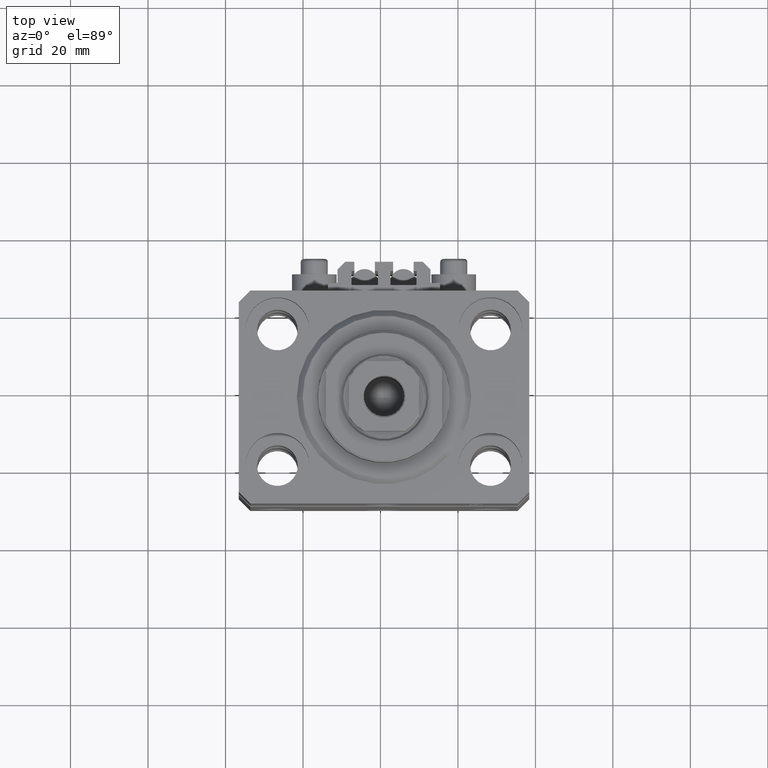
[diagram: clean part render]
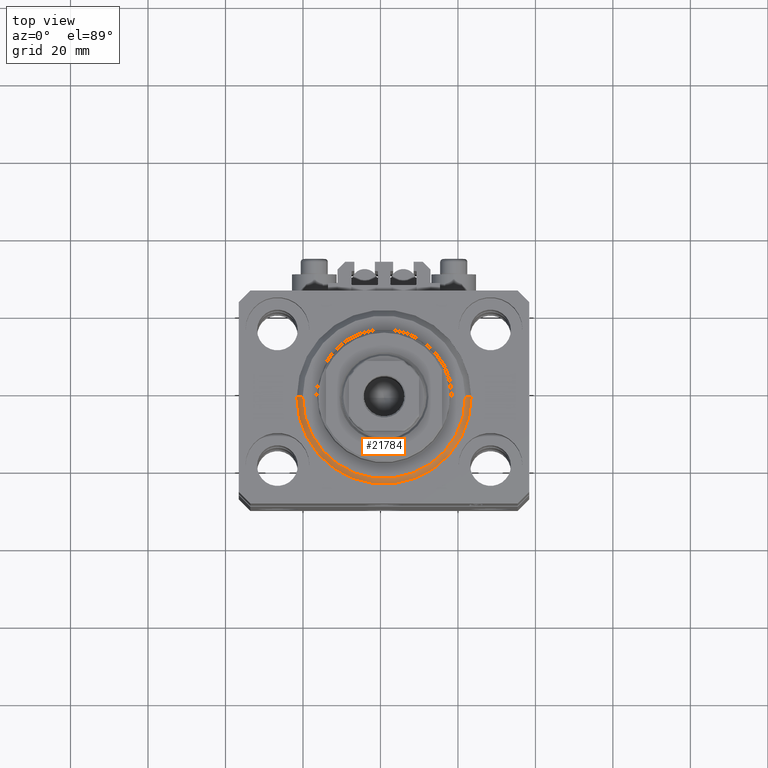
[diagram: same view with one face highlighted and labeled with its STEP entity id]
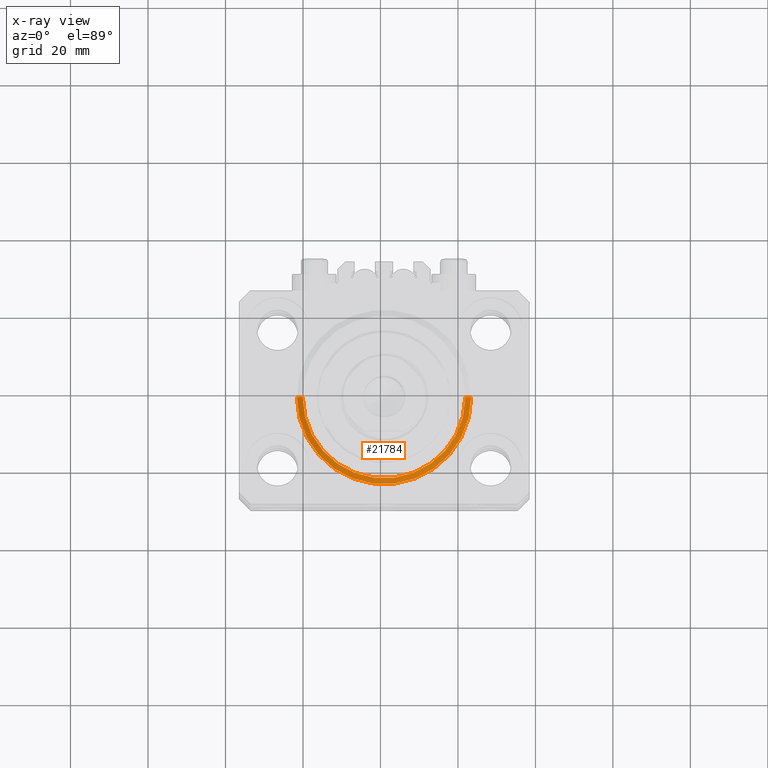
[diagram: x-ray of the same camera — body ghosted, the highlighted face saturated]
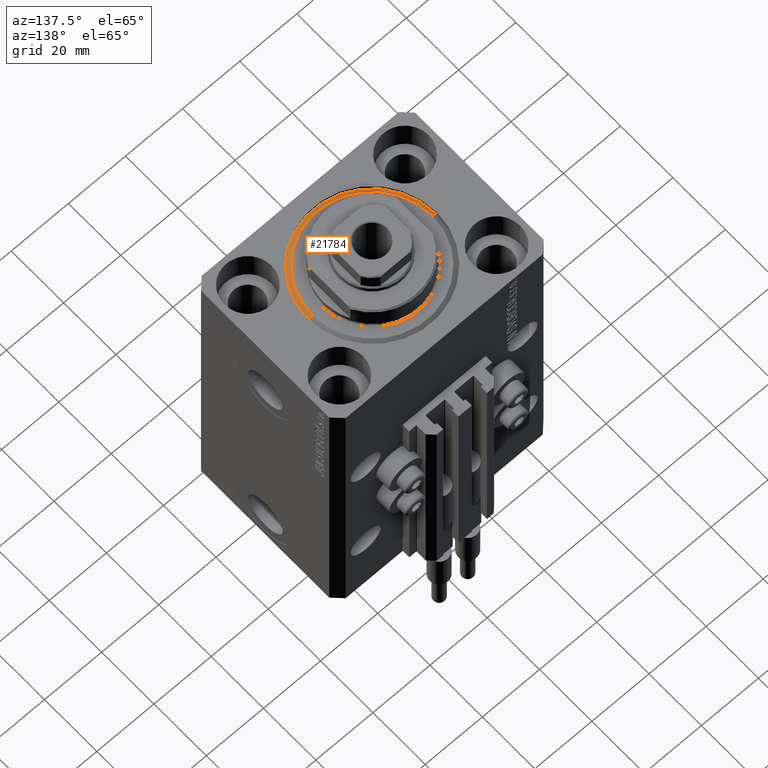
[diagram: same view with one face highlighted and labeled with its STEP entity id]
A machine part, top view. The second image highlights one B-rep face of the part: STEP entity #21784.
The next image is the same camera in x-ray: the body ghosted, the highlighted face saturated — about 0% of this face is hidden behind the body in this view.
A second angle (auxiliary view) of the same face is appended — the face is thin or edge-on in the first view.
In plain terms, the highlighted conical surface has half-angle 45 deg.
Its self-contained STEP definition (entity closure, byte-faithful):
#1719 = EDGE_CURVE ( 'NONE', #12269, #29296, #12503, .T. ) ;
#3320 = EDGE_CURVE ( 'NONE', #24454, #24155, #31454, .T. ) ;
#4164 = LINE ( 'NONE', #30475, #30343 ) ;
#6909 = CARTESIAN_POINT ( 'NONE',  ( 22.50000000000000355, 2.755455298081545172E-15, 1.500000000000001332 ) ) ;
#8296 = CARTESIAN_POINT ( 'NONE',  ( -20.99999999999998934, 2.663606788145492628E-15, 0.000000000000000000 ) ) ;
#10933 = LINE ( 'NONE', #22501, #12630 ) ;
#10946 = FACE_OUTER_BOUND ( 'NONE', #24918, .T. ) ;
#11132 = CONICAL_SURFACE ( 'NONE', #27633, 22.50000000000000355, 0.7853981633974517207 ) ;
#12269 = VERTEX_POINT ( 'NONE', #14567 ) ;
#12503 = CIRCLE ( 'NONE', #27434, 20.99999999999998934 ) ;
#12630 = VECTOR ( 'NONE', #18779, 1000.000000000000114 ) ;
#12761 = DIRECTION ( 'NONE',  ( -0.000000000000000000, -0.000000000000000000, 1.000000000000000000 ) ) ;
#14567 = CARTESIAN_POINT ( 'NONE',  ( 20.99999999999998934, 0.000000000000000000, 0.000000000000000000 ) ) ;
#15109 = CARTESIAN_POINT ( 'NONE',  ( 0.000000000000000000, 0.000000000000000000, 1.500000000000001332 ) ) ;
#17131 = CARTESIAN_POINT ( 'NONE',  ( 0.000000000000000000, 0.000000000000000000, 0.000000000000000000 ) ) ;
#18779 = DIRECTION ( 'NONE',  ( 0.7071067811865500152, 0.000000000000000000, 0.7071067811865451302 ) ) ;
#19881 = EDGE_CURVE ( 'NONE', #12269, #24155, #10933, .T. ) ;
#20630 = DIRECTION ( 'NONE',  ( 1.000000000000000000, 0.000000000000000000, 0.000000000000000000 ) ) ;
#21492 = ORIENTED_EDGE ( 'NONE', *, *, #35816, .F. ) ;
#21784 = ADVANCED_FACE ( 'NONE', ( #10946 ), #11132, .T. ) ;
#22232 = ORIENTED_EDGE ( 'NONE', *, *, #3320, .F. ) ;
#22501 = CARTESIAN_POINT ( 'NONE',  ( 22.50000000000000355, 0.000000000000000000, 1.500000000000001332 ) ) ;
#22807 = AXIS2_PLACEMENT_3D ( 'NONE', #39123, #12761, #20630 ) ;
#23320 = ORIENTED_EDGE ( 'NONE', *, *, #19881, .T. ) ;
#24155 = VERTEX_POINT ( 'NONE', #6909 ) ;
#24454 = VERTEX_POINT ( 'NONE', #41321 ) ;
#24918 = EDGE_LOOP ( 'NONE', ( #21492, #36476, #23320, #22232 ) ) ;
#27434 = AXIS2_PLACEMENT_3D ( 'NONE', #17131, #43533, #28948 ) ;
#27633 = AXIS2_PLACEMENT_3D ( 'NONE', #15109, #41004, #29411 ) ;
#28948 = DIRECTION ( 'NONE',  ( 1.000000000000000000, 0.000000000000000000, 0.000000000000000000 ) ) ;
#29296 = VERTEX_POINT ( 'NONE', #8296 ) ;
#29411 = DIRECTION ( 'NONE',  ( 1.000000000000000000, 0.000000000000000000, 0.000000000000000000 ) ) ;
#30343 = VECTOR ( 'NONE', #45521, 1000.000000000000114 ) ;
#30475 = CARTESIAN_POINT ( 'NONE',  ( -22.50000000000000355, 2.755455298081545172E-15, 1.500000000000001332 ) ) ;
#31454 = CIRCLE ( 'NONE', #22807, 22.50000000000000355 ) ;
#35816 = EDGE_CURVE ( 'NONE', #29296, #24454, #4164, .T. ) ;
#36476 = ORIENTED_EDGE ( 'NONE', *, *, #1719, .F. ) ;
#39123 = CARTESIAN_POINT ( 'NONE',  ( 0.000000000000000000, 0.000000000000000000, 1.500000000000001332 ) ) ;
#41004 = DIRECTION ( 'NONE',  ( -0.000000000000000000, -0.000000000000000000, 1.000000000000000000 ) ) ;
#41321 = CARTESIAN_POINT ( 'NONE',  ( -22.50000000000000355, 0.000000000000000000, 1.500000000000001332 ) ) ;
#43533 = DIRECTION ( 'NONE',  ( -0.000000000000000000, -0.000000000000000000, -1.000000000000000000 ) ) ;
#45521 = DIRECTION ( 'NONE',  ( -0.7071067811865500152, 8.659560562354963673E-17, 0.7071067811865451302 ) ) ;